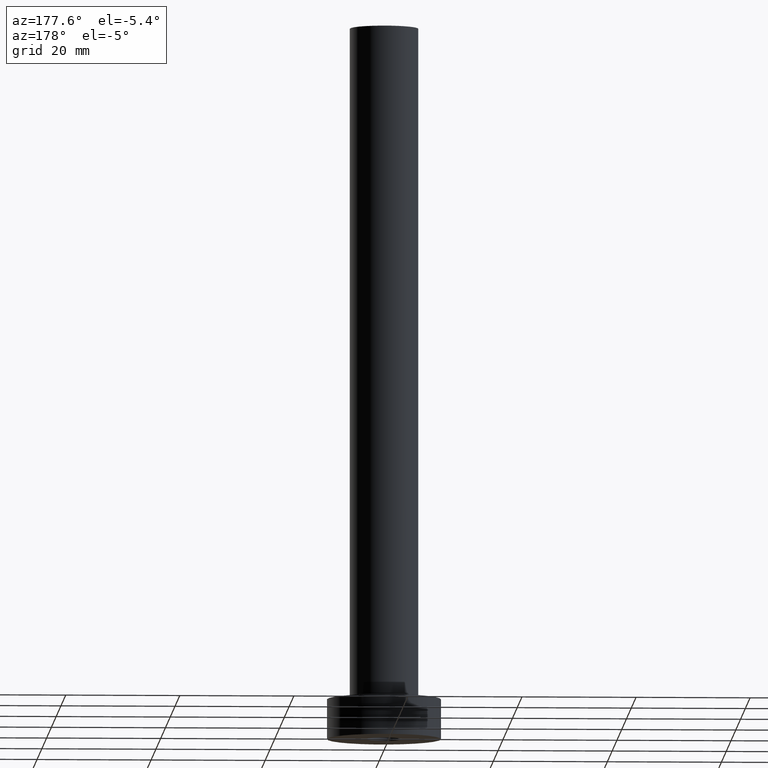
[diagram: clean part render]
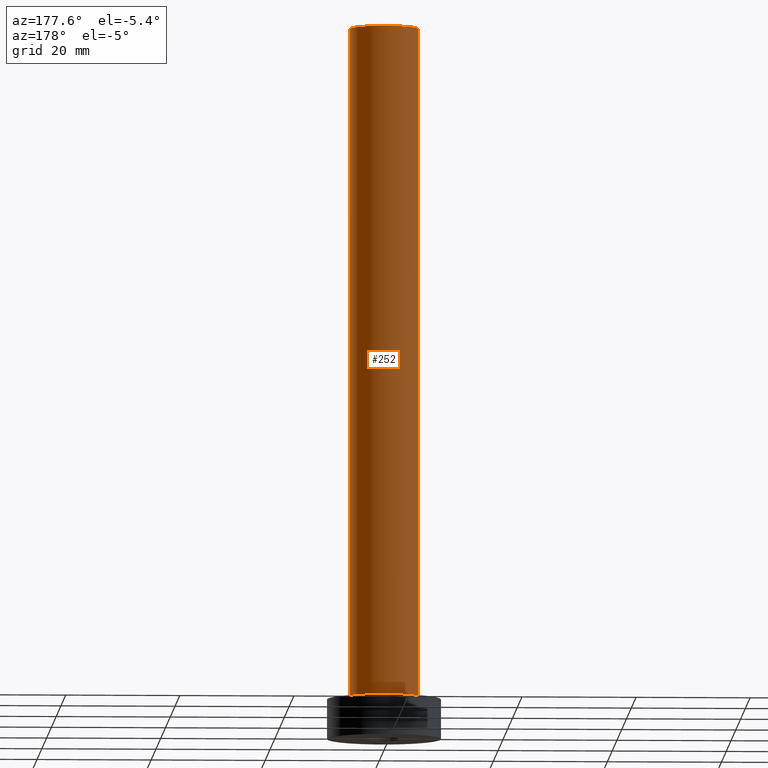
[diagram: same view with one face highlighted and labeled with its STEP entity id]
A machine part, auxiliary view. The second image highlights one B-rep face of the part: STEP entity #252.
In plain terms, the highlighted cylindrical surface (edge-blend (fillet) strip) has radius 6 mm, axis along (-0, -0, -1).
Its self-contained STEP definition (entity closure, byte-faithful):
#4 = AXIS2_PLACEMENT_3D ( 'NONE', #251, #255, #392 ) ;
#6 = ORIENTED_EDGE ( 'NONE', *, *, #436, .F. ) ;
#14 = LINE ( 'NONE', #406, #390 ) ;
#17 = DIRECTION ( 'NONE',  ( -0.000000000000000000, -0.000000000000000000, -1.000000000000000000 ) ) ;
#19 = AXIS2_PLACEMENT_3D ( 'NONE', #156, #424, #393 ) ;
#31 = VERTEX_POINT ( 'NONE', #172 ) ;
#68 = EDGE_CURVE ( 'NONE', #218, #31, #14, .T. ) ;
#73 = CARTESIAN_POINT ( 'NONE',  ( 6.000000000000000888, 7.347880794884120722E-16, 7.500000000000007105 ) ) ;
#74 = CARTESIAN_POINT ( 'NONE',  ( 6.000000000000000888, 7.347880794884120722E-16, 125.0000000000000000 ) ) ;
#82 = EDGE_LOOP ( 'NONE', ( #6, #340, #293, #234 ) ) ;
#90 = VERTEX_POINT ( 'NONE', #73 ) ;
#110 = EDGE_CURVE ( 'NONE', #90, #31, #210, .T. ) ;
#111 = LINE ( 'NONE', #74, #155 ) ;
#147 = CYLINDRICAL_SURFACE ( 'NONE', #328, 6.000000000000000888 ) ;
#155 = VECTOR ( 'NONE', #258, 1000.000000000000000 ) ;
#156 = CARTESIAN_POINT ( 'NONE',  ( 0.000000000000000000, 0.000000000000000000, 125.0000000000000000 ) ) ;
#172 = CARTESIAN_POINT ( 'NONE',  ( -6.000000000000000888, 0.000000000000000000, 7.500000000000007105 ) ) ;
#177 = DIRECTION ( 'NONE',  ( -1.000000000000000000, 0.000000000000000000, 0.000000000000000000 ) ) ;
#210 = CIRCLE ( 'NONE', #4, 6.000000000000000888 ) ;
#217 = CARTESIAN_POINT ( 'NONE',  ( -6.000000000000000888, 0.000000000000000000, 125.0000000000000000 ) ) ;
#218 = VERTEX_POINT ( 'NONE', #217 ) ;
#230 = CIRCLE ( 'NONE', #19, 6.000000000000000888 ) ;
#234 = ORIENTED_EDGE ( 'NONE', *, *, #68, .F. ) ;
#251 = CARTESIAN_POINT ( 'NONE',  ( 0.000000000000000000, 0.000000000000000000, 7.500000000000007105 ) ) ;
#252 = ADVANCED_FACE ( 'NONE', ( #427 ), #147, .T. ) ;
#255 = DIRECTION ( 'NONE',  ( 0.000000000000000000, 0.000000000000000000, 1.000000000000000000 ) ) ;
#258 = DIRECTION ( 'NONE',  ( -0.000000000000000000, -0.000000000000000000, -1.000000000000000000 ) ) ;
#286 = DIRECTION ( 'NONE',  ( -0.000000000000000000, -0.000000000000000000, -1.000000000000000000 ) ) ;
#293 = ORIENTED_EDGE ( 'NONE', *, *, #110, .T. ) ;
#324 = CARTESIAN_POINT ( 'NONE',  ( 0.000000000000000000, 0.000000000000000000, 125.0000000000000000 ) ) ;
#328 = AXIS2_PLACEMENT_3D ( 'NONE', #324, #286, #177 ) ;
#340 = ORIENTED_EDGE ( 'NONE', *, *, #428, .T. ) ;
#349 = VERTEX_POINT ( 'NONE', #446 ) ;
#390 = VECTOR ( 'NONE', #17, 1000.000000000000000 ) ;
#392 = DIRECTION ( 'NONE',  ( 1.000000000000000000, 0.000000000000000000, 0.000000000000000000 ) ) ;
#393 = DIRECTION ( 'NONE',  ( 1.000000000000000000, 0.000000000000000000, 0.000000000000000000 ) ) ;
#406 = CARTESIAN_POINT ( 'NONE',  ( -6.000000000000000888, 0.000000000000000000, 125.0000000000000000 ) ) ;
#424 = DIRECTION ( 'NONE',  ( 0.000000000000000000, 0.000000000000000000, 1.000000000000000000 ) ) ;
#427 = FACE_OUTER_BOUND ( 'NONE', #82, .T. ) ;
#428 = EDGE_CURVE ( 'NONE', #349, #90, #111, .T. ) ;
#436 = EDGE_CURVE ( 'NONE', #349, #218, #230, .T. ) ;
#446 = CARTESIAN_POINT ( 'NONE',  ( 6.000000000000000888, 7.347880794884120722E-16, 125.0000000000000000 ) ) ;